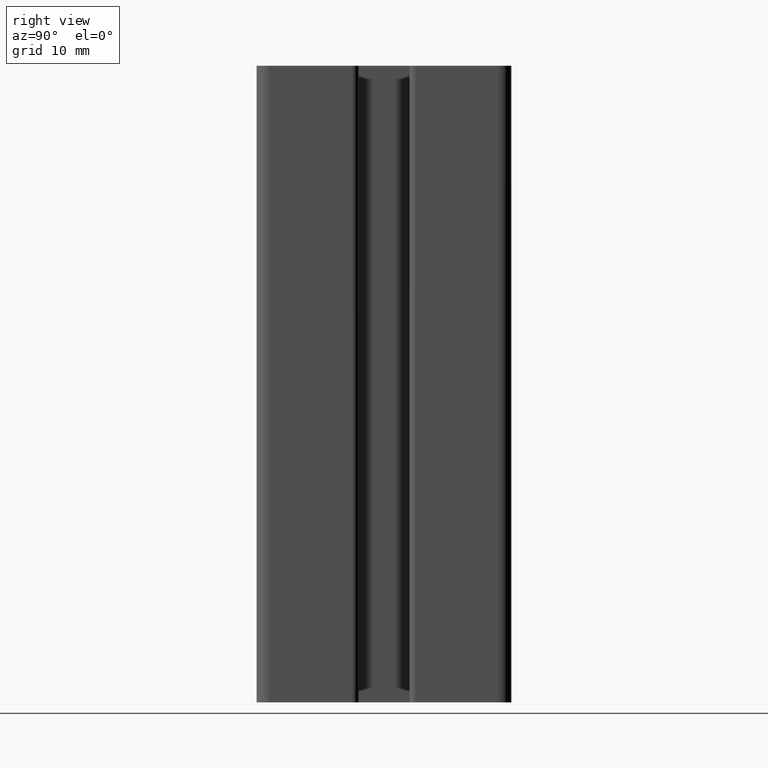
[diagram: clean part render]
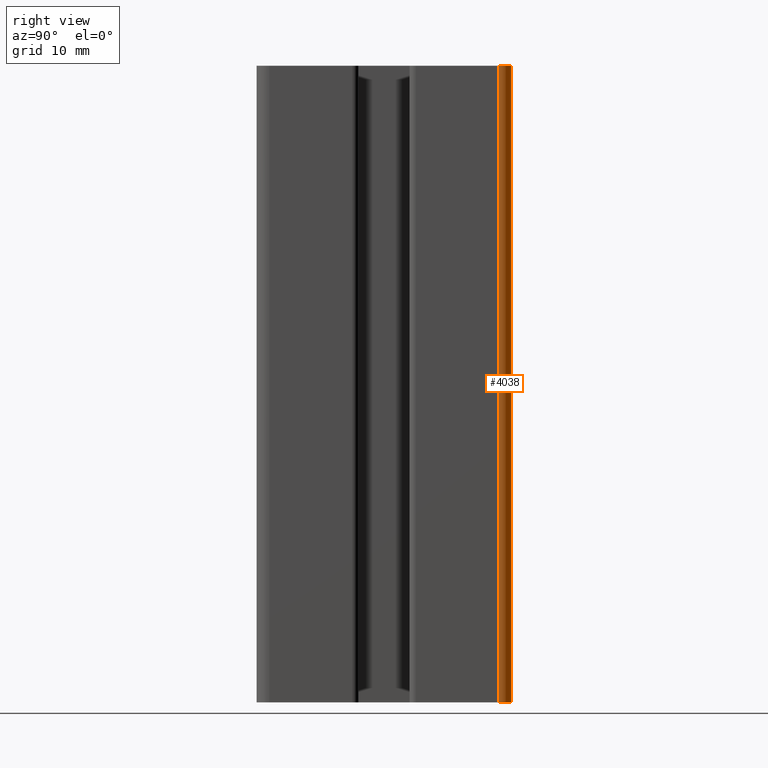
[diagram: same view with one face highlighted and labeled with its STEP entity id]
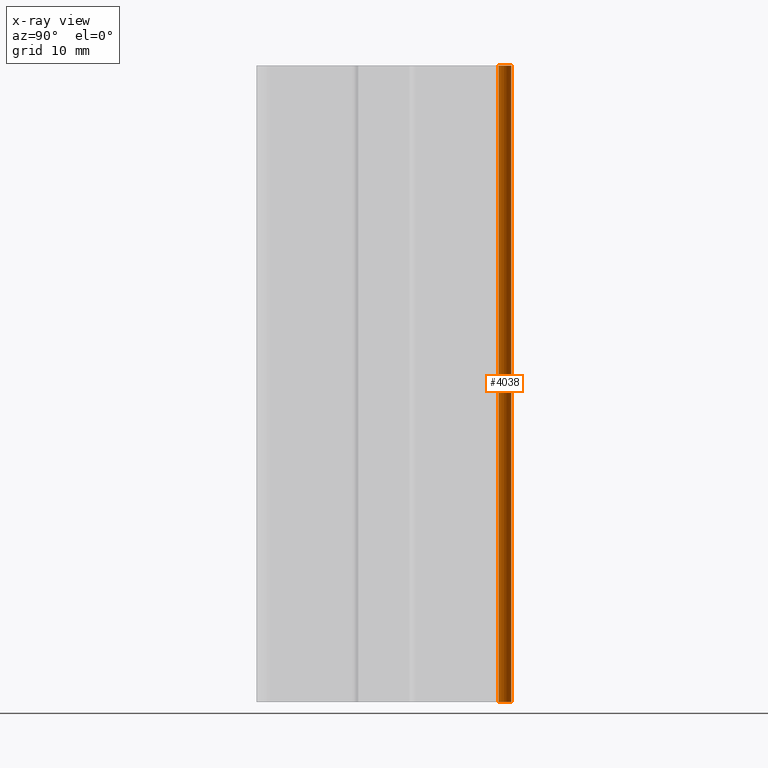
[diagram: x-ray of the same camera — body ghosted, the highlighted face saturated]
A machine part, right view. The second image highlights one B-rep face of the part: STEP entity #4038.
The next image is the same camera in x-ray: the body ghosted, the highlighted face saturated — about 0% of this face is hidden behind the body in this view.
In plain terms, the highlighted cylindrical surface (edge-blend (fillet) strip) has radius 2 mm, axis along (0, 0, 1).
Its self-contained STEP definition (entity closure, byte-faithful):
#324=FACE_OUTER_BOUND('',#531,.T.);
#531=EDGE_LOOP('',(#3525,#3526,#3527,#3528));
#921=LINE('',#6804,#1321);
#924=LINE('',#6810,#1324);
#1321=VECTOR('',#5593,100.);
#1324=VECTOR('',#5598,100.);
#1536=CIRCLE('',#4435,2.);
#1539=CIRCLE('',#4441,2.);
#1927=VERTEX_POINT('',#6801);
#1928=VERTEX_POINT('',#6803);
#1929=VERTEX_POINT('',#6807);
#1930=VERTEX_POINT('',#6809);
#2513=EDGE_CURVE('',#1928,#1927,#921,.T.);
#2516=EDGE_CURVE('',#1929,#1930,#924,.T.);
#2532=EDGE_CURVE('',#1927,#1930,#1536,.T.);
#2536=EDGE_CURVE('',#1928,#1929,#1539,.T.);
#3525=ORIENTED_EDGE('',*,*,#2532,.T.);
#3526=ORIENTED_EDGE('',*,*,#2516,.F.);
#3527=ORIENTED_EDGE('',*,*,#2536,.F.);
#3528=ORIENTED_EDGE('',*,*,#2513,.T.);
#3839=CYLINDRICAL_SURFACE('',#4440,2.);
#4038=ADVANCED_FACE('',(#324),#3839,.T.);
#4435=AXIS2_PLACEMENT_3D('',#6838,#5625,#5626);
#4440=AXIS2_PLACEMENT_3D('',#6845,#5636,#5637);
#4441=AXIS2_PLACEMENT_3D('',#6846,#5638,#5639);
#5593=DIRECTION('',(0.,0.,1.));
#5598=DIRECTION('',(0.,0.,1.));
#5625=DIRECTION('center_axis',(0.,0.,-1.));
#5626=DIRECTION('ref_axis',(-1.,0.,0.));
#5636=DIRECTION('center_axis',(0.,0.,1.));
#5637=DIRECTION('ref_axis',(-1.,0.,0.));
#5638=DIRECTION('center_axis',(0.,0.,-1.));
#5639=DIRECTION('ref_axis',(-1.,0.,0.));
#6801=CARTESIAN_POINT('',(18.,20.,100.));
#6803=CARTESIAN_POINT('',(18.,20.,0.));
#6804=CARTESIAN_POINT('',(18.,20.,0.));
#6807=CARTESIAN_POINT('',(20.,18.,0.));
#6809=CARTESIAN_POINT('',(20.,18.,100.));
#6810=CARTESIAN_POINT('',(20.,18.,0.));
#6838=CARTESIAN_POINT('Origin',(18.,18.,100.));
#6845=CARTESIAN_POINT('Origin',(18.,18.,0.));
#6846=CARTESIAN_POINT('Origin',(18.,18.,0.));